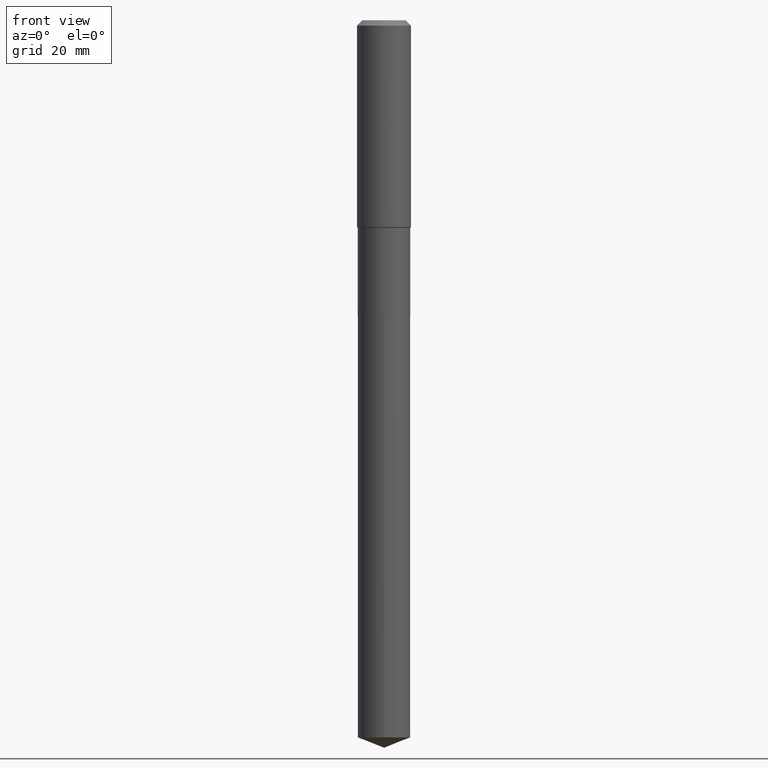
[diagram: clean part render]
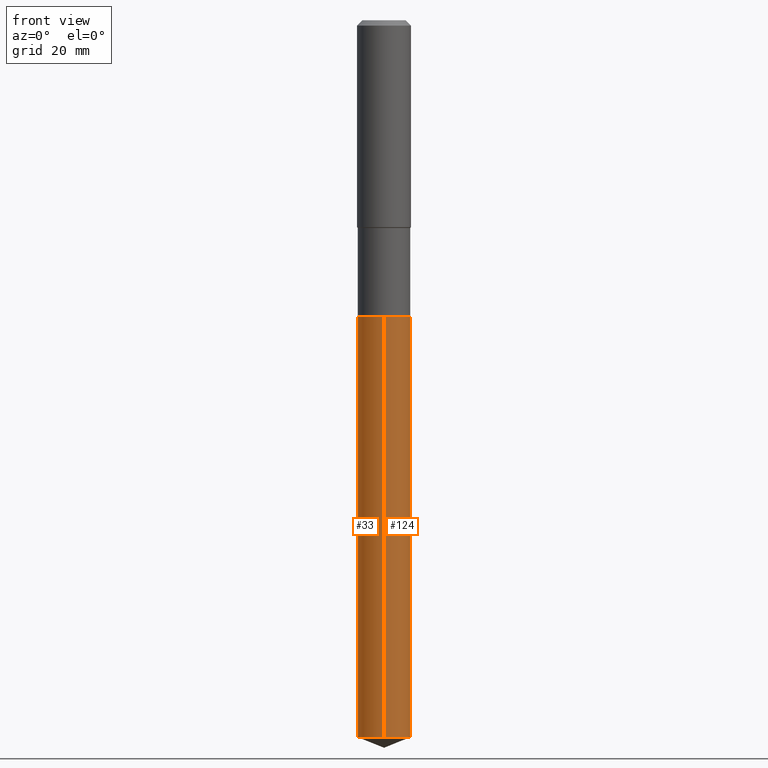
[diagram: same view with one multi-face feature highlighted, each face labeled with its STEP entity id]
A machine part, front view. The highlighted faces form ONE feature: a constant-radius fillet chain: 2 tangent blend faces with common blend radius 5.8496 mm. The faces share edges in the B-rep.
Their STEP definitions:
[1] entity #124 (Cylinder):
#7 = DIRECTION ( 'NONE',  ( -6.982962677686265922E-15, -1.000000000000000000, 2.372425526412734110E-15 ) ) ;
#8 = ORIENTED_EDGE ( 'NONE', *, *, #299, .F. ) ;
#16 = EDGE_LOOP ( 'NONE', ( #369, #485, #99, #8 ) ) ;
#55 = CARTESIAN_POINT ( 'NONE',  ( 1.537503604435947827E-28, -2.195168381745942955E-14, -6.287182417465880135 ) ) ;
#60 = AXIS2_PLACEMENT_3D ( 'NONE', #118, #340, #7 ) ;
#77 = LINE ( 'NONE', #265, #225 ) ;
#94 = DIRECTION ( 'NONE',  ( -2.445449169258695004E-29, 3.491509460039474509E-15, 1.000000000000000000 ) ) ;
#97 = VECTOR ( 'NONE', #94, 39.37007874015748143 ) ;
#99 = ORIENTED_EDGE ( 'NONE', *, *, #333, .F. ) ;
#104 = AXIS2_PLACEMENT_3D ( 'NONE', #55, #316, #156 ) ;
#106 = EDGE_CURVE ( 'NONE', #446, #329, #77, .T. ) ;
#118 = CARTESIAN_POINT ( 'NONE',  ( 6.354306145991460877E-29, -9.072265110850034200E-15, -2.598400000000000709 ) ) ;
#122 = CARTESIAN_POINT ( 'NONE',  ( -1.608176304670993438E-15, -0.2303000000000219594, -6.287182417465879247 ) ) ;
#124 = ADVANCED_FACE ( 'NONE', ( #189 ), #415, .T. ) ;
#132 = AXIS2_PLACEMENT_3D ( 'NONE', #251, #395, #135 ) ;
#135 = DIRECTION ( 'NONE',  ( -6.982962677686265922E-15, -1.000000000000000000, 2.372425526412734110E-15 ) ) ;
#156 = DIRECTION ( 'NONE',  ( -6.982962677686265922E-15, -1.000000000000000000, 4.744851052825468220E-15 ) ) ;
#167 = CARTESIAN_POINT ( 'NONE',  ( 1.636379920455664589E-15, 0.2302999999999780778, -6.287182417465881024 ) ) ;
#176 = EDGE_CURVE ( 'NONE', #244, #446, #253, .T. ) ;
#189 = FACE_OUTER_BOUND ( 'NONE', #16, .T. ) ;
#220 = CARTESIAN_POINT ( 'NONE',  ( 1.636379920455664984E-15, 0.2302999999999909564, -2.598400000000001597 ) ) ;
#225 = VECTOR ( 'NONE', #378, 39.37007874015748143 ) ;
#231 = CIRCLE ( 'NONE', #132, 0.2303000000000000047 ) ;
#244 = VERTEX_POINT ( 'NONE', #122 ) ;
#247 = LINE ( 'NONE', #433, #97 ) ;
#251 = CARTESIAN_POINT ( 'NONE',  ( 6.354306145991460877E-29, -9.072265110850034200E-15, -2.598400000000000709 ) ) ;
#253 = CIRCLE ( 'NONE', #104, 0.2303000000000000047 ) ;
#265 = CARTESIAN_POINT ( 'NONE',  ( 1.636379920455574068E-15, 0.2302999999999909286, -2.598400000000001597 ) ) ;
#290 = CARTESIAN_POINT ( 'NONE',  ( -1.608176304671083368E-15, -0.2303000000000090808, -2.598400000000000265 ) ) ;
#299 = EDGE_CURVE ( 'NONE', #244, #360, #247, .T. ) ;
#316 = DIRECTION ( 'NONE',  ( -2.445449169258695004E-29, 3.491509460039474509E-15, 1.000000000000000000 ) ) ;
#329 = VERTEX_POINT ( 'NONE', #220 ) ;
#333 = EDGE_CURVE ( 'NONE', #360, #329, #231, .T. ) ;
#340 = DIRECTION ( 'NONE',  ( -2.445449169258695004E-29, 3.491509460039474509E-15, 1.000000000000000000 ) ) ;
#360 = VERTEX_POINT ( 'NONE', #290 ) ;
#369 = ORIENTED_EDGE ( 'NONE', *, *, #176, .T. ) ;
#378 = DIRECTION ( 'NONE',  ( -2.445449169258695004E-29, 3.491509460039474509E-15, 1.000000000000000000 ) ) ;
#395 = DIRECTION ( 'NONE',  ( -2.445449169258695004E-29, 3.491509460039474509E-15, 1.000000000000000000 ) ) ;
#415 = CYLINDRICAL_SURFACE ( 'NONE', #60, 0.2303000000000000047 ) ;
#433 = CARTESIAN_POINT ( 'NONE',  ( -1.608176304671083368E-15, -0.2303000000000090808, -2.598400000000000265 ) ) ;
#446 = VERTEX_POINT ( 'NONE', #167 ) ;
#485 = ORIENTED_EDGE ( 'NONE', *, *, #106, .T. ) ;
[2] entity #33 (Cylinder):
#15 = DIRECTION ( 'NONE',  ( -6.982962677686265922E-15, -1.000000000000000000, 4.744851052825468220E-15 ) ) ;
#33 = ADVANCED_FACE ( 'NONE', ( #449 ), #371, .T. ) ;
#38 = ORIENTED_EDGE ( 'NONE', *, *, #356, .F. ) ;
#43 = DIRECTION ( 'NONE',  ( -2.445449169258695004E-29, 3.491509460039474509E-15, 1.000000000000000000 ) ) ;
#44 = CARTESIAN_POINT ( 'NONE',  ( 6.354306145991460877E-29, -9.072265110850034200E-15, -2.598400000000000709 ) ) ;
#77 = LINE ( 'NONE', #265, #225 ) ;
#92 = CARTESIAN_POINT ( 'NONE',  ( 1.537503604435947827E-28, -2.195168381745942955E-14, -6.287182417465880135 ) ) ;
#94 = DIRECTION ( 'NONE',  ( -2.445449169258695004E-29, 3.491509460039474509E-15, 1.000000000000000000 ) ) ;
#97 = VECTOR ( 'NONE', #94, 39.37007874015748143 ) ;
#98 = DIRECTION ( 'NONE',  ( -6.982962677686265922E-15, -1.000000000000000000, 2.372425526412734110E-15 ) ) ;
#106 = EDGE_CURVE ( 'NONE', #446, #329, #77, .T. ) ;
#122 = CARTESIAN_POINT ( 'NONE',  ( -1.608176304670993438E-15, -0.2303000000000219594, -6.287182417465879247 ) ) ;
#140 = CIRCLE ( 'NONE', #182, 0.2303000000000000047 ) ;
#141 = DIRECTION ( 'NONE',  ( -2.445449169258695004E-29, 3.491509460039474509E-15, 1.000000000000000000 ) ) ;
#167 = CARTESIAN_POINT ( 'NONE',  ( 1.636379920455664589E-15, 0.2302999999999780778, -6.287182417465881024 ) ) ;
#182 = AXIS2_PLACEMENT_3D ( 'NONE', #92, #207, #15 ) ;
#197 = EDGE_CURVE ( 'NONE', #446, #244, #140, .T. ) ;
#200 = CIRCLE ( 'NONE', #483, 0.2303000000000000047 ) ;
#207 = DIRECTION ( 'NONE',  ( -2.445449169258695004E-29, 3.491509460039474509E-15, 1.000000000000000000 ) ) ;
#215 = ORIENTED_EDGE ( 'NONE', *, *, #197, .T. ) ;
#220 = CARTESIAN_POINT ( 'NONE',  ( 1.636379920455664984E-15, 0.2302999999999909564, -2.598400000000001597 ) ) ;
#225 = VECTOR ( 'NONE', #378, 39.37007874015748143 ) ;
#244 = VERTEX_POINT ( 'NONE', #122 ) ;
#247 = LINE ( 'NONE', #433, #97 ) ;
#256 = ORIENTED_EDGE ( 'NONE', *, *, #299, .T. ) ;
#259 = DIRECTION ( 'NONE',  ( -6.982962677686265922E-15, -1.000000000000000000, 2.372425526412734110E-15 ) ) ;
#265 = CARTESIAN_POINT ( 'NONE',  ( 1.636379920455574068E-15, 0.2302999999999909286, -2.598400000000001597 ) ) ;
#290 = CARTESIAN_POINT ( 'NONE',  ( -1.608176304671083368E-15, -0.2303000000000090808, -2.598400000000000265 ) ) ;
#299 = EDGE_CURVE ( 'NONE', #244, #360, #247, .T. ) ;
#329 = VERTEX_POINT ( 'NONE', #220 ) ;
#356 = EDGE_CURVE ( 'NONE', #329, #360, #200, .T. ) ;
#360 = VERTEX_POINT ( 'NONE', #290 ) ;
#371 = CYLINDRICAL_SURFACE ( 'NONE', #419, 0.2303000000000000047 ) ;
#378 = DIRECTION ( 'NONE',  ( -2.445449169258695004E-29, 3.491509460039474509E-15, 1.000000000000000000 ) ) ;
#385 = EDGE_LOOP ( 'NONE', ( #490, #215, #256, #38 ) ) ;
#419 = AXIS2_PLACEMENT_3D ( 'NONE', #44, #43, #259 ) ;
#433 = CARTESIAN_POINT ( 'NONE',  ( -1.608176304671083368E-15, -0.2303000000000090808, -2.598400000000000265 ) ) ;
#442 = CARTESIAN_POINT ( 'NONE',  ( 6.354306145991460877E-29, -9.072265110850034200E-15, -2.598400000000000709 ) ) ;
#446 = VERTEX_POINT ( 'NONE', #167 ) ;
#449 = FACE_OUTER_BOUND ( 'NONE', #385, .T. ) ;
#483 = AXIS2_PLACEMENT_3D ( 'NONE', #442, #141, #98 ) ;
#490 = ORIENTED_EDGE ( 'NONE', *, *, #106, .F. ) ;